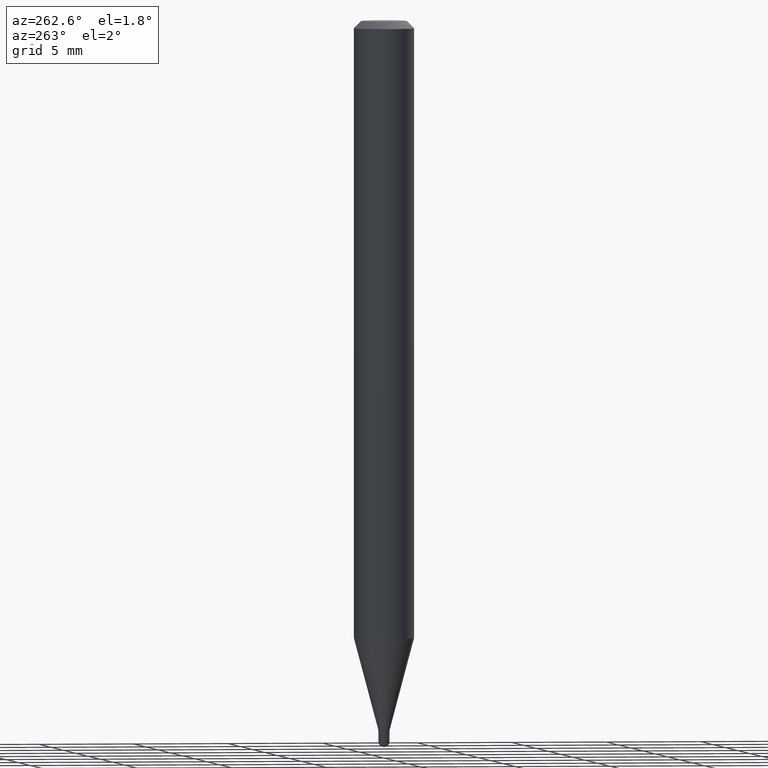
[diagram: clean part render]
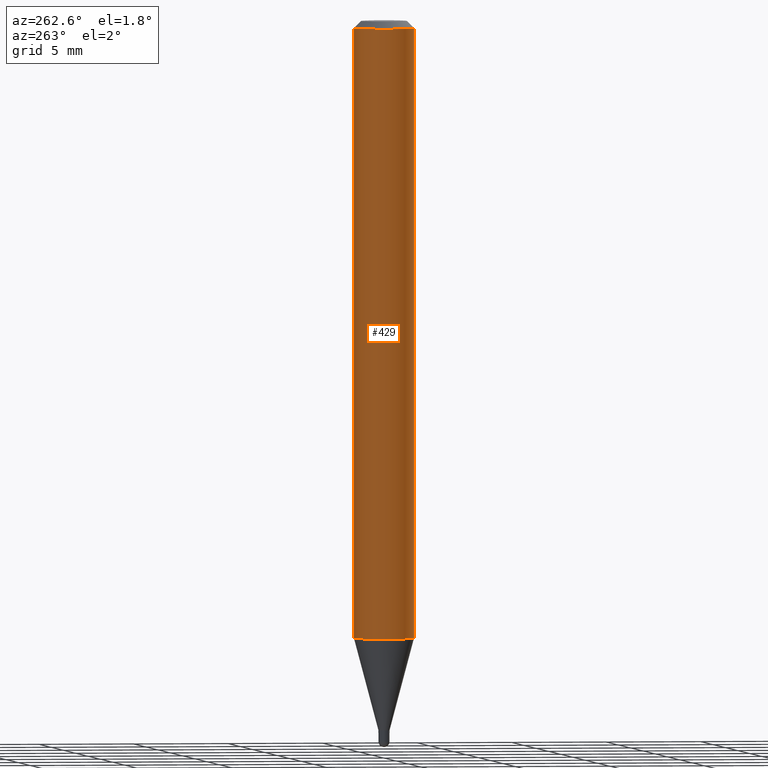
[diagram: same view with one face highlighted and labeled with its STEP entity id]
A machine part, auxiliary view. The second image highlights one B-rep face of the part: STEP entity #429.
In plain terms, the highlighted cylindrical surface (edge-blend (fillet) strip) has radius 1.5875 mm, axis along (-0, 0, 1).
Its self-contained STEP definition (entity closure, byte-faithful):
#1 = CIRCLE ( 'NONE', #347, 0.06250000000000000000 ) ;
#23 = CARTESIAN_POINT ( 'NONE',  ( 3.118387021566951302E-29, -4.452202206703873729E-15, -1.275165408813993206 ) ) ;
#28 = AXIS2_PLACEMENT_3D ( 'NONE', #23, #496, #419 ) ;
#36 = VERTEX_POINT ( 'NONE', #459 ) ;
#49 = CARTESIAN_POINT ( 'NONE',  ( -4.364351673553605587E-16, -0.06250000000000446865, -1.275165408813992762 ) ) ;
#54 = VECTOR ( 'NONE', #114, 39.37007874015748143 ) ;
#89 = EDGE_LOOP ( 'NONE', ( #205, #327, #92, #161 ) ) ;
#90 = DIRECTION ( 'NONE',  ( -6.982962677686265922E-15, -1.000000000000000000, 3.491470342537585919E-15 ) ) ;
#92 = ORIENTED_EDGE ( 'NONE', *, *, #401, .T. ) ;
#114 = DIRECTION ( 'NONE',  ( -2.445476484864267913E-29, 3.491470342537585919E-15, 1.000000000000000000 ) ) ;
#123 = CARTESIAN_POINT ( 'NONE',  ( -4.364351673553912750E-16, -0.06250000000000005551, -0.01499999999999979128 ) ) ;
#144 = CARTESIAN_POINT ( 'NONE',  ( 3.668214727296404829E-31, -5.237205513806382330E-17, -0.01500000000000000812 ) ) ;
#161 = ORIENTED_EDGE ( 'NONE', *, *, #318, .F. ) ;
#166 = EDGE_CURVE ( 'NONE', #36, #312, #499, .T. ) ;
#182 = CARTESIAN_POINT ( 'NONE',  ( 4.440892098500939734E-16, 0.06249999999999995143, -0.01500000000000022669 ) ) ;
#196 = AXIS2_PLACEMENT_3D ( 'NONE', #360, #211, #90 ) ;
#205 = ORIENTED_EDGE ( 'NONE', *, *, #166, .F. ) ;
#211 = DIRECTION ( 'NONE',  ( -2.445476484864267913E-29, 3.491470342537585919E-15, 1.000000000000000000 ) ) ;
#215 = VERTEX_POINT ( 'NONE', #49 ) ;
#233 = DIRECTION ( 'NONE',  ( -2.445476484864267913E-29, 3.491470342537585919E-15, 1.000000000000000000 ) ) ;
#242 = VERTEX_POINT ( 'NONE', #123 ) ;
#275 = CIRCLE ( 'NONE', #28, 0.06250000000000000000 ) ;
#280 = EDGE_CURVE ( 'NONE', #36, #215, #275, .T. ) ;
#312 = VERTEX_POINT ( 'NONE', #182 ) ;
#318 = EDGE_CURVE ( 'NONE', #312, #242, #1, .T. ) ;
#322 = DIRECTION ( 'NONE',  ( -6.982962677686265922E-15, -1.000000000000000000, 3.483106191921935554E-15 ) ) ;
#327 = ORIENTED_EDGE ( 'NONE', *, *, #280, .T. ) ;
#341 = CARTESIAN_POINT ( 'NONE',  ( -4.364351673553916201E-16, -0.06250000000000000000, 2.182168964085991200E-16 ) ) ;
#347 = AXIS2_PLACEMENT_3D ( 'NONE', #144, #442, #322 ) ;
#360 = CARTESIAN_POINT ( 'NONE',  ( 0.000000000000000000, 0.000000000000000000, 0.000000000000000000 ) ) ;
#389 = VECTOR ( 'NONE', #233, 39.37007874015748143 ) ;
#391 = CARTESIAN_POINT ( 'NONE',  ( 4.440892098500625669E-16, 0.06250000000000000000, -2.182168964085991200E-16 ) ) ;
#401 = EDGE_CURVE ( 'NONE', #215, #242, #463, .T. ) ;
#419 = DIRECTION ( 'NONE',  ( -6.982962677686265922E-15, -1.000000000000000000, 4.370956789862821150E-15 ) ) ;
#429 = ADVANCED_FACE ( 'NONE', ( #482 ), #446, .T. ) ;
#442 = DIRECTION ( 'NONE',  ( -2.445476484864267913E-29, 3.491470342537585919E-15, 1.000000000000000000 ) ) ;
#446 = CYLINDRICAL_SURFACE ( 'NONE', #196, 0.06250000000000000000 ) ;
#459 = CARTESIAN_POINT ( 'NONE',  ( 4.440892098500936776E-16, 0.06249999999999554523, -1.275165408813993428 ) ) ;
#463 = LINE ( 'NONE', #341, #54 ) ;
#482 = FACE_OUTER_BOUND ( 'NONE', #89, .T. ) ;
#496 = DIRECTION ( 'NONE',  ( -2.445476484864267913E-29, 3.491470342537585919E-15, 1.000000000000000000 ) ) ;
#499 = LINE ( 'NONE', #391, #389 ) ;